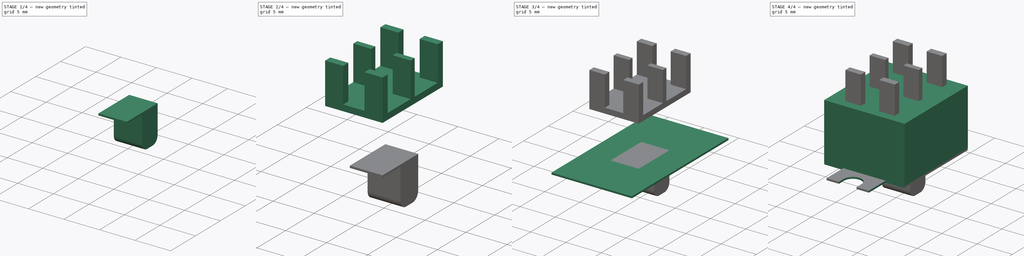
[diagram: build sequence overview — one tinted view per stage of 4, left to right]
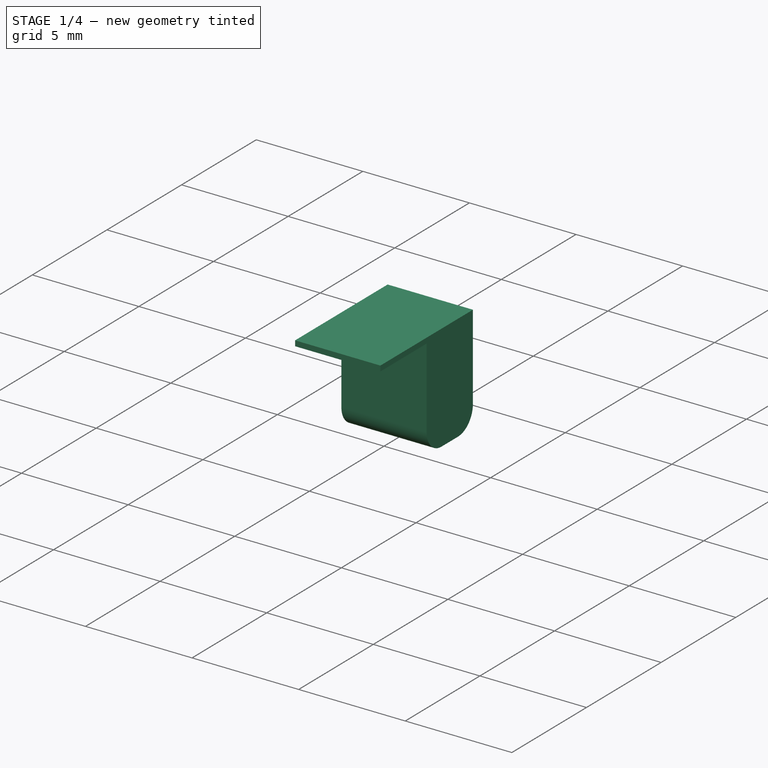
[diagram: stage 1 of 4 — iso view after this stage's code; geometry added in this stage tinted green]
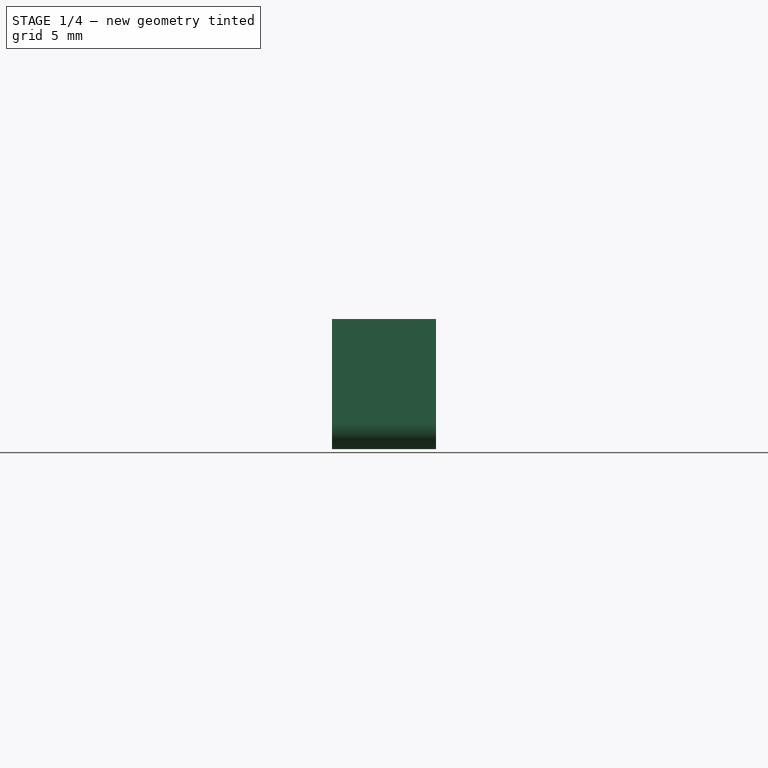
[diagram: stage 1 of 4 — front view after this stage's code; geometry added in this stage tinted green]
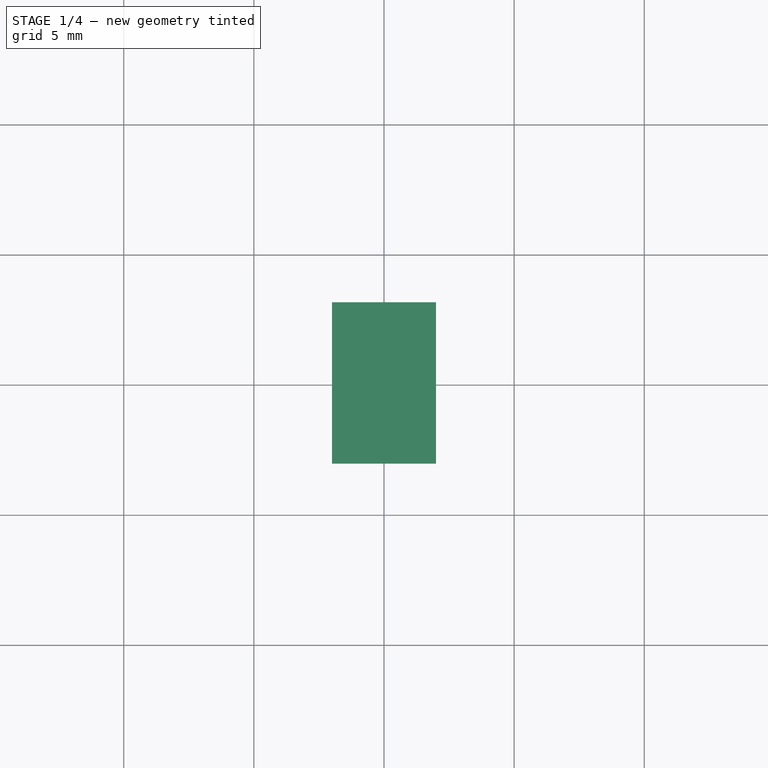
[diagram: stage 1 of 4 — top view after this stage's code; geometry added in this stage tinted green]
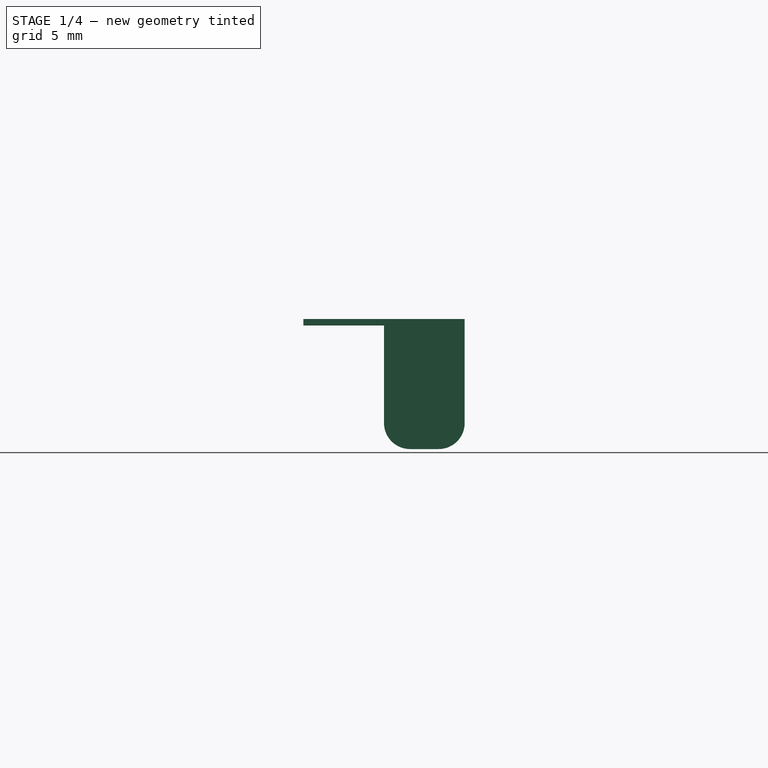
[diagram: stage 1 of 4 — right view after this stage's code; geometry added in this stage tinted green]
FCSTD DOCUMENT  (FreeCAD 0.19R24276 (Git))
Label: Std_DoubleSwitch
License: All rights reserved
LicenseURL: http://en.wikipedia.org/wiki/All_rights_reserved
objects: Sketcher::SketchObject×10, PartDesign::Pocket×6, PartDesign::Pad×4, PartDesign::Body×4, PartDesign::Plane×1, PartDesign::Fillet×1, App::Part×1
note: 37 computed .brp shape members not serialized (recipe doc carries the construction recipe); baked Part::Feature solids carry a one-line shape summary decoded from their .brp

FEATURE [PartDesign::Body] Body002  label="Connectors"
  Group = -> [DatumPlane,Sketch005,Pad002,Sketch007,Pocket003,Sketch008,Pocket004]
  Origin = -> Origin003
  Tip = -> Pocket004
FEATURE [Sketcher::SketchObject] Sketch009
  FullyConstrained = true
  MapMode = 5
  Support = -> [XY_Plane004]
  sketch-geometry (6):
    g0: LineSegment StartX=0 StartY=0 StartZ=0 EndX=0 EndY=3.1 EndZ=0
    g1: LineSegment StartX=0 StartY=0 StartZ=0 EndX=2 EndY=-1e-16 EndZ=0
    g2: LineSegment StartX=-2 StartY=3.1 StartZ=0 EndX=2 EndY=3.1 EndZ=0
    g3: LineSegment StartX=2 StartY=3.1 StartZ=0 EndX=2 EndY=-3.1 EndZ=0
    g4: LineSegment StartX=2 StartY=-3.1 StartZ=0 EndX=-2 EndY=-3.1 EndZ=0
    g5: LineSegment StartX=-2 StartY=-3.1 StartZ=0 EndX=-2 EndY=3.1 EndZ=0
  constraints (16):
    c: Coincident(g0,g-1)
    c: PointOnObject(g0,g-2)
    c: Coincident(g1,g-1)
    c: PointOnObject(g1,g-1)
    c: Coincident(g2,g3)
    c: Coincident(g3,g4)
    c: Coincident(g4,g5)
    c: Coincident(g5,g2)
    c: Horizontal(g2)
    c: Horizontal(g4)
    c: Vertical(g3)
    c: Vertical(g5)
    c: Symmetric(g2,g2,g0)
    c: Symmetric(g2,g3,g1)
    c: Distance(g2) = 4
    c: Distance(g3) = 6.2
FEATURE [PartDesign::Pad] Pad003
  Direction = (1,1,1)
  Length = 5
  Length2 = 100
  Profile = -> Sketch009
  Reversed = true
  Type = 0
FEATURE [Sketcher::SketchObject] Sketch011
  FullyConstrained = true
  MapMode = 5
  Placement = pos=(0,0,-5) rot=(1,0,0;3.14159rad)
  Support = -> [Pad003]
  sketch-geometry (4):
    g0: LineSegment StartX=-5 StartY=10 StartZ=0 EndX=5 EndY=10 EndZ=0
    g1: LineSegment StartX=5 StartY=10 StartZ=0 EndX=5 EndY=0 EndZ=0
    g2: LineSegment StartX=5 StartY=0 StartZ=0 EndX=-5 EndY=0 EndZ=0
    g3: LineSegment StartX=-5 StartY=0 StartZ=0 EndX=-5 EndY=10 EndZ=0
  constraints (11):
    c: Coincident(g0,g1)
    c: Coincident(g1,g2)
    c: Coincident(g2,g3)
    c: Coincident(g3,g0)
    c: Horizontal(g0)
    c: Horizontal(g2)
    c: Vertical(g1)
    c: Vertical(g3)
    c: Symmetric(g2,g1,g-1)
    c: Distance(g1) = 10
    c: Distance(g0) = 10
FEATURE [PartDesign::Pocket] Pocket005
  BaseFeature = -> Pad003
  Length = 4.75
  Length2 = 100
  Profile = -> Sketch011
  Type = 0
FEATURE [PartDesign::Fillet] Fillet
  Base = -> Pocket005 [Edge16,Edge4]
  BaseFeature = -> Pocket005
  Radius = 1
  SupportTransform = false
FEATURE [PartDesign::Body] Body003  label="Switch"
  Group = -> [Sketch009,Pad003,Sketch011,Pocket005,Fillet]
  Origin = -> Origin004
  Tip = -> Fillet
FEATURE [App::Part] Part  label="DoubleSwitch"
  Group = -> [Body,Body001,Body002,Body003]
  Origin = -> Origin
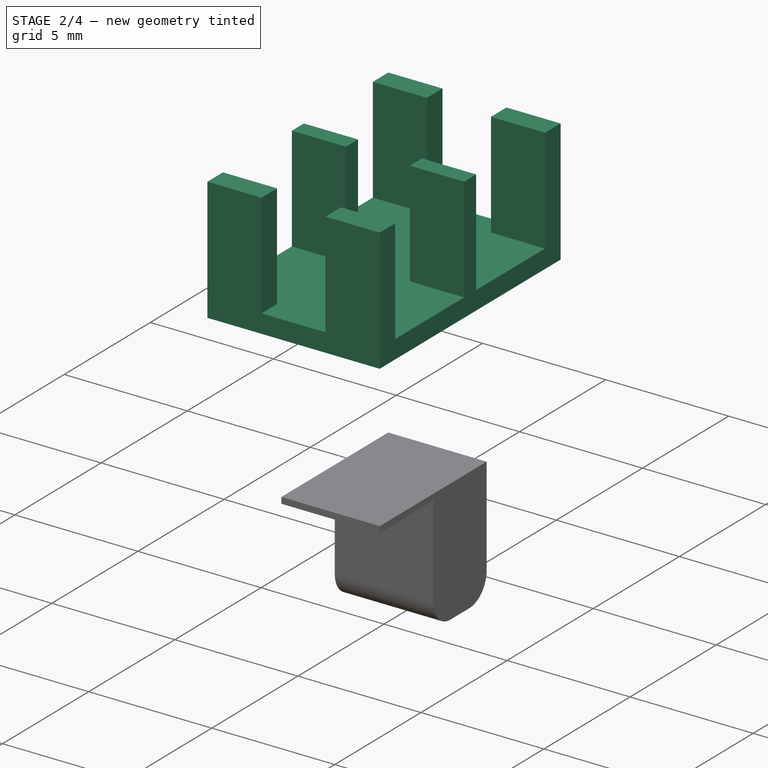
[diagram: stage 2 of 4 — iso view after this stage's code; geometry added in this stage tinted green]
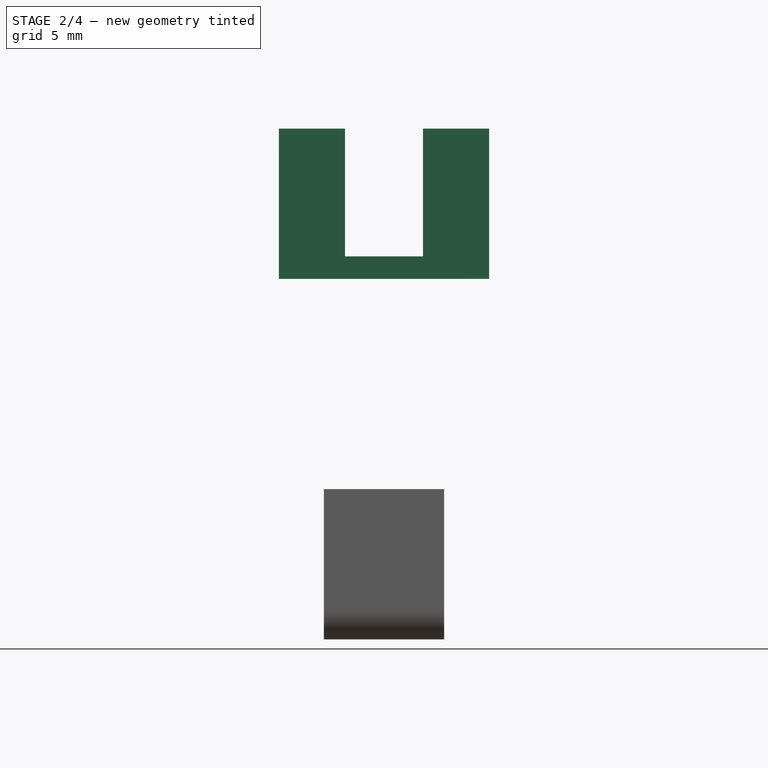
[diagram: stage 2 of 4 — front view after this stage's code; geometry added in this stage tinted green]
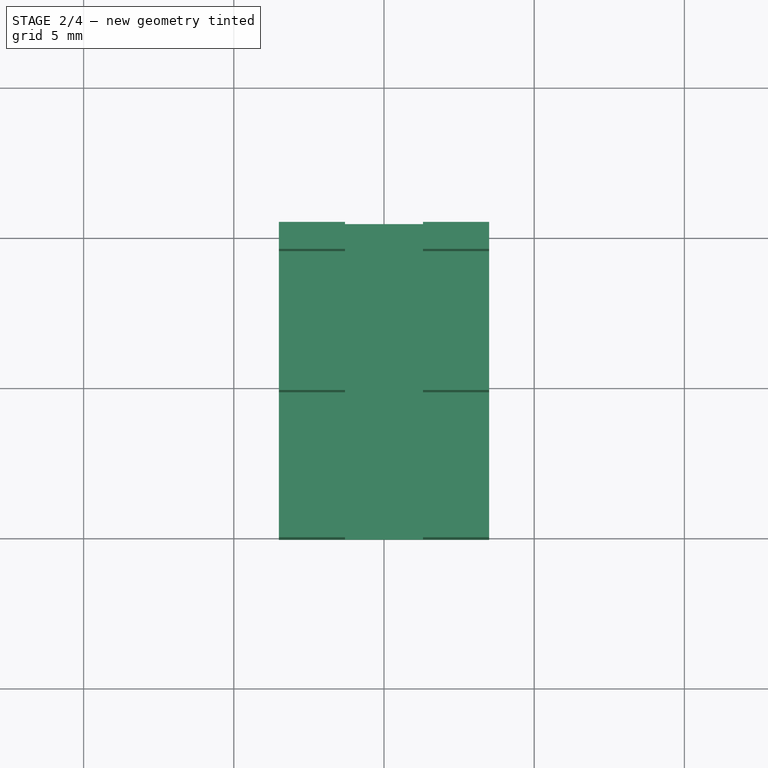
[diagram: stage 2 of 4 — top view after this stage's code; geometry added in this stage tinted green]
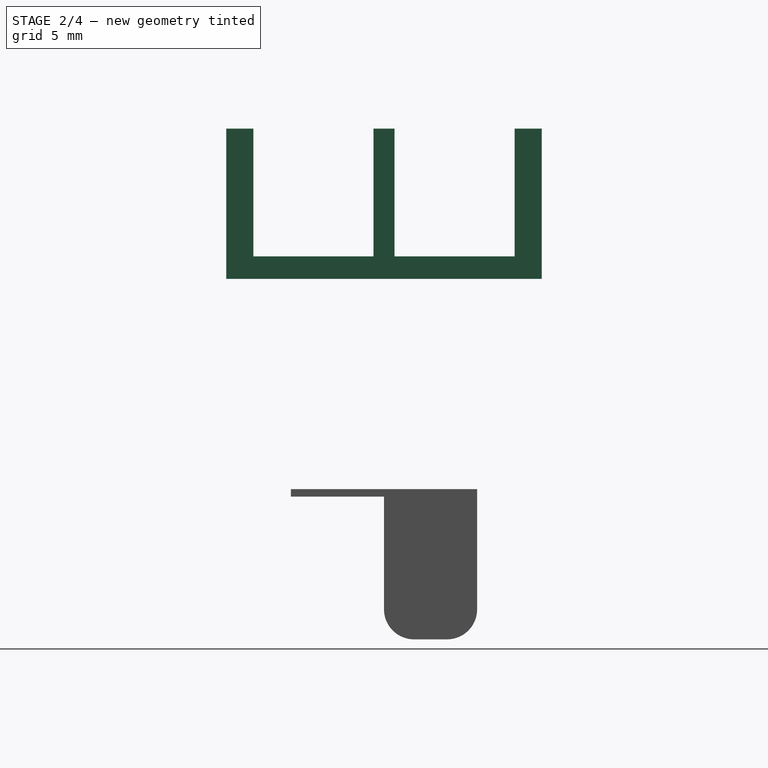
[diagram: stage 2 of 4 — right view after this stage's code; geometry added in this stage tinted green]
FEATURE [PartDesign::Body] Body001  label="FrontPlate"
  Group = -> [Sketch001,Pad001,Sketch002,Pocket,Sketch003,Pocket001,Sketch004,Pocket002]
  Origin = -> Origin002
  Tip = -> Pocket002
FEATURE [PartDesign::Plane] DatumPlane
  AttachmentOffset = pos=(0,0,7) rot=(0,0,1;0rad)
  Length = 60
  MapMode = 5
  Placement = pos=(0,0,7) rot=(0,0,1;0rad)
  ResizeMode = 0
  Support = -> [XY_Plane003]
  Width = 60
FEATURE [Sketcher::SketchObject] Sketch005
  FullyConstrained = true
  MapMode = 5
  Placement = pos=(0,0,7) rot=(0,0,1;0rad)
  Support = -> [DatumPlane]
  sketch-geometry (6):
    g0: LineSegment StartX=-3.5 StartY=5.25 StartZ=0 EndX=3.5 EndY=5.25 EndZ=0
    g1: LineSegment StartX=3.5 StartY=5.25 StartZ=0 EndX=3.5 EndY=-5.25 EndZ=0
    g2: LineSegment StartX=3.5 StartY=-5.25 StartZ=0 EndX=-3.5 EndY=-5.25 EndZ=0
    g3: LineSegment StartX=-3.5 StartY=-5.25 StartZ=0 EndX=-3.5 EndY=5.25 EndZ=0
    g4: LineSegment StartX=0 StartY=0 StartZ=0 EndX=0 EndY=5.25 EndZ=0
    g5: LineSegment StartX=0 StartY=0 StartZ=0 EndX=3.5 EndY=-1e-16 EndZ=0
  constraints (16):
    c: Coincident(g0,g1)
    c: Coincident(g1,g2)
    c: Coincident(g2,g3)
    c: Coincident(g3,g0)
    c: Horizontal(g0)
    c: Horizontal(g2)
    c: Vertical(g1)
    c: Vertical(g3)
    c: Coincident(g4,g-1)
    c: PointOnObject(g4,g-2)
    c: Coincident(g5,g-1)
    c: PointOnObject(g5,g-1)
    c: Symmetric(g0,g0,g4)
    c: Symmetric(g1,g0,g5)
    c: Distance(g0) = 7
    c: Distance(g1) = 10.5
FEATURE [PartDesign::Pad] Pad002
  Direction = (1,1,1)
  Length = 5
  Length2 = 100
  Placement = pos=(0,0,7) rot=(0,0,1;0rad)
  Profile = -> Sketch005
  Type = 0
FEATURE [Sketcher::SketchObject] Sketch007
  FullyConstrained = true
  MapMode = 5
  Placement = pos=(0,0,12) rot=(0,0,1;0rad)
  Support = -> [Pad002]
  sketch-geometry (10):
    g0: LineSegment StartX=0 StartY=0 StartZ=0 EndX=0 EndY=0.35 EndZ=0
    g1: LineSegment StartX=0 StartY=0 StartZ=0 EndX=0 EndY=-0.35 EndZ=0
    g2: LineSegment StartX=-6 StartY=4.35 StartZ=0 EndX=6 EndY=4.35 EndZ=0
    g3: LineSegment StartX=6 StartY=4.35 StartZ=0 EndX=6 EndY=0.35 EndZ=0
    g4: LineSegment StartX=6 StartY=0.35 StartZ=0 EndX=-6 EndY=0.35 EndZ=0
    g5: LineSegment StartX=-6 StartY=0.35 StartZ=0 EndX=-6 EndY=4.35 EndZ=0
    g6: LineSegment StartX=-6 StartY=-0.35 StartZ=0 EndX=6 EndY=-0.35 EndZ=0
    g7: LineSegment StartX=6 StartY=-0.35 StartZ=0 EndX=6 EndY=-4.35 EndZ=0
    g8: LineSegment StartX=6 StartY=-4.35 StartZ=0 EndX=-6 EndY=-4.35 EndZ=0
    g9: LineSegment StartX=-6 StartY=-4.35 StartZ=0 EndX=-6 EndY=-0.35 EndZ=0
  constraints (28):
    c: Coincident(g0,g-1)
    c: PointOnObject(g0,g-2)
    c: Coincident(g1,g-1)
    c: PointOnObject(g1,g-2)
    c: Equal(g0,g1)
    c: Coincident(g2,g3)
    c: Coincident(g3,g4)
    c: Coincident(g4,g5)
    c: Coincident(g5,g2)
    c: Horizontal(g2)
    c: Horizontal(g4)
    c: Vertical(g3)
    c: Vertical(g5)
    c: Coincident(g6,g7)
    c: Coincident(g7,g8)
    c: Coincident(g8,g9)
    c: Coincident(g9,g6)
    c: Horizontal(g6)
    c: Horizontal(g8)
    c: Vertical(g7)
    c: Vertical(g9)
    c: Symmetric(g4,g3,g0)
    c: Symmetric(g6,g6,g1)
    c: Distance(g3) = 4
    c: Distance(g7) = 4
    c: DistanceY(g6,g3) = 0.7
    c: Equal(g2,g8)
    c: Distance(g2) = 12
FEATURE [PartDesign::Pocket] Pocket003
  BaseFeature = -> Pad002
  Length = 8.5
  Length2 = 100
  Midplane = true
  Placement = pos=(0,0,7) rot=(0,0,1;0rad)
  Profile = -> Sketch007
  Type = 0
FEATURE [Sketcher::SketchObject] Sketch008
  FullyConstrained = true
  MapMode = 5
  Placement = pos=(0,0,12) rot=(0,0,1;0rad)
  Support = -> [Pocket003]
  sketch-geometry (6):
    g0: LineSegment StartX=0 StartY=0 StartZ=0 EndX=0 EndY=10 EndZ=0
    g1: LineSegment StartX=0 StartY=0 StartZ=0 EndX=1.3 EndY=-3e-16 EndZ=0
    g2: LineSegment StartX=-1.3 StartY=10 StartZ=0 EndX=1.3 EndY=10 EndZ=0
    g3: LineSegment StartX=1.3 StartY=10 StartZ=0 EndX=1.3 EndY=-10 EndZ=0
    g4: LineSegment StartX=1.3 StartY=-10 StartZ=0 EndX=-1.3 EndY=-10 EndZ=0
    g5: LineSegment StartX=-1.3 StartY=-10 StartZ=0 EndX=-1.3 EndY=10 EndZ=0
  constraints (16):
    c: Coincident(g0,g-1)
    c: PointOnObject(g0,g-2)
    c: Coincident(g1,g-1)
    c: PointOnObject(g1,g-1)
    c: Coincident(g2,g3)
    c: Coincident(g3,g4)
    c: Coincident(g4,g5)
    c: Coincident(g5,g2)
    c: Horizontal(g2)
    c: Horizontal(g4)
    c: Vertical(g3)
    c: Vertical(g5)
    c: Symmetric(g2,g2,g0)
    c: Symmetric(g2,g3,g1)
    c: Distance(g2) = 2.6
    c: Distance(g3) = 20
FEATURE [PartDesign::Pocket] Pocket004
  BaseFeature = -> Pocket003
  Length = 8.5
  Length2 = 100
  Midplane = true
  Placement = pos=(0,0,7) rot=(0,0,1;0rad)
  Profile = -> Sketch008
  Type = 0
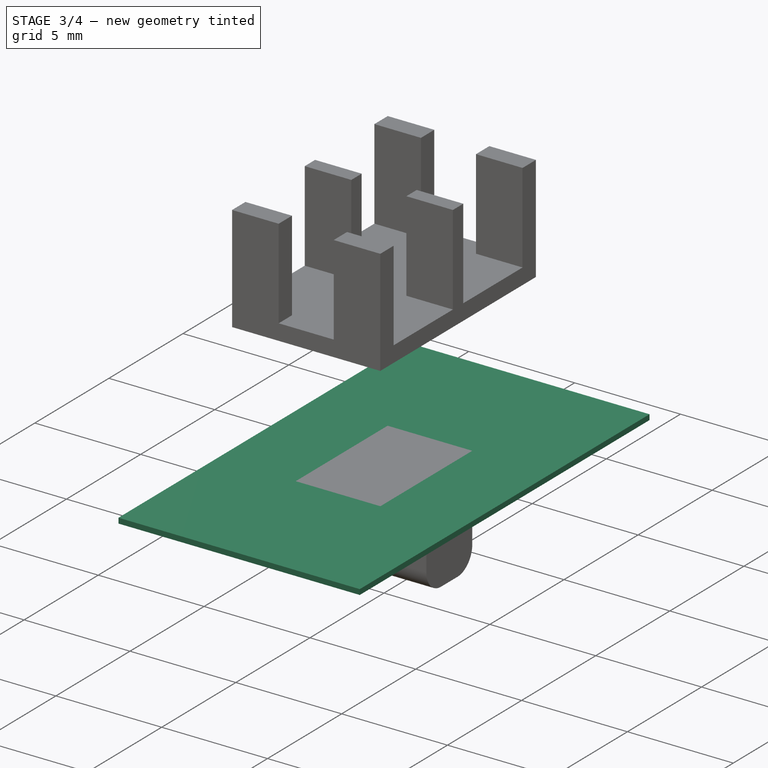
[diagram: stage 3 of 4 — iso view after this stage's code; geometry added in this stage tinted green]
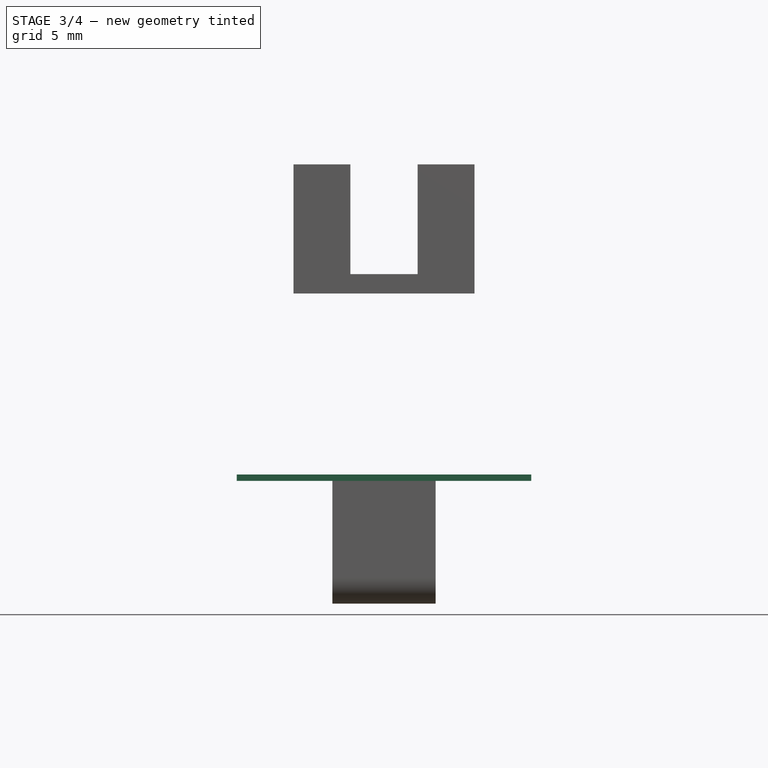
[diagram: stage 3 of 4 — front view after this stage's code; geometry added in this stage tinted green]
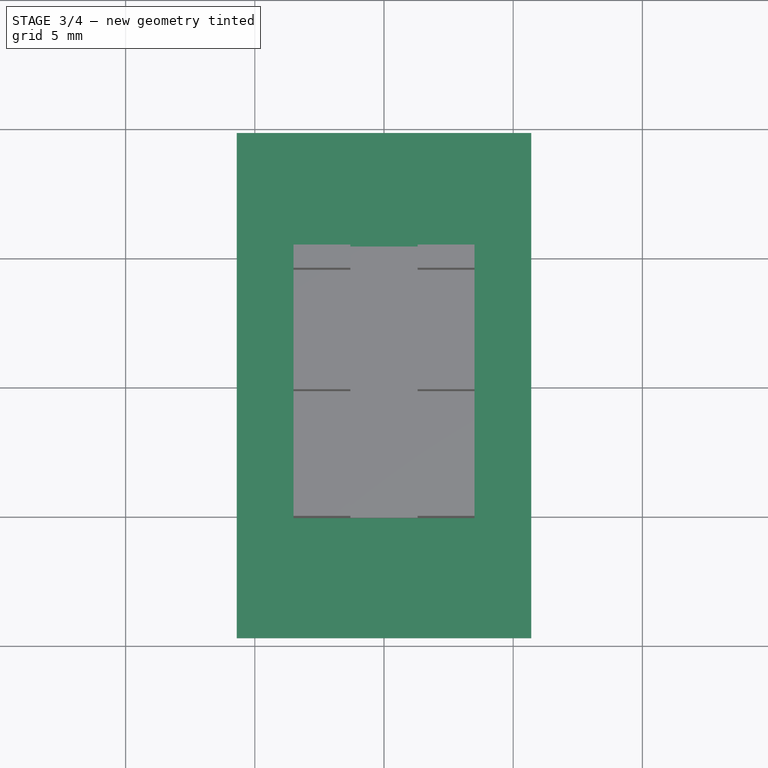
[diagram: stage 3 of 4 — top view after this stage's code; geometry added in this stage tinted green]
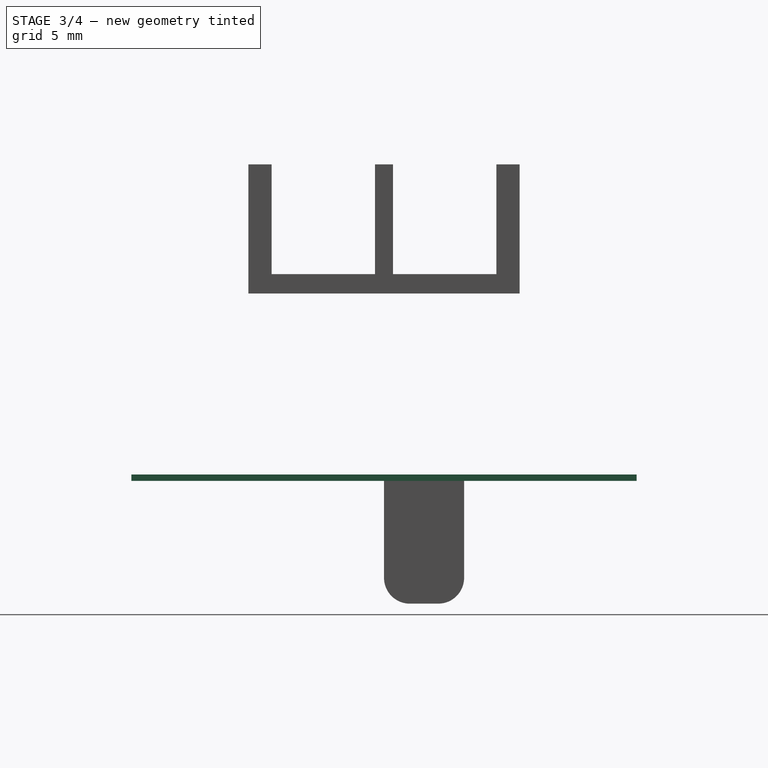
[diagram: stage 3 of 4 — right view after this stage's code; geometry added in this stage tinted green]
FEATURE [PartDesign::Body] Body  label="MainBody"
  Group = -> [Sketch,Pad]
  Origin = -> Origin001
  Tip = -> Pad
FEATURE [Sketcher::SketchObject] Sketch001
  FullyConstrained = true
  MapMode = 5
  Support = -> [XY_Plane002]
  sketch-geometry (6):
    g0: LineSegment StartX=0 StartY=0 StartZ=0 EndX=0 EndY=9.775 EndZ=0
    g1: LineSegment StartX=0 StartY=0 StartZ=0 EndX=5.7 EndY=2e-16 EndZ=0
    g2: LineSegment StartX=-5.7 StartY=9.775 StartZ=0 EndX=5.7 EndY=9.775 EndZ=0
    g3: LineSegment StartX=5.7 StartY=9.775 StartZ=0 EndX=5.7 EndY=-9.775 EndZ=0
    g4: LineSegment StartX=5.7 StartY=-9.775 StartZ=0 EndX=-5.7 EndY=-9.775 EndZ=0
    g5: LineSegment StartX=-5.7 StartY=-9.775 StartZ=0 EndX=-5.7 EndY=9.775 EndZ=0
  constraints (16):
    c: Coincident(g0,g-1)
    c: PointOnObject(g0,g-2)
    c: Coincident(g1,g-1)
    c: PointOnObject(g1,g-1)
    c: Coincident(g2,g3)
    c: Coincident(g3,g4)
    c: Coincident(g4,g5)
    c: Coincident(g5,g2)
    c: Horizontal(g2)
    c: Horizontal(g4)
    c: Vertical(g3)
    c: Vertical(g5)
    c: Symmetric(g2,g2,g0)
    c: Symmetric(g2,g3,g1)
    c: Distance(g2) = 11.4
    c: Distance(g3) = 19.55
FEATURE [PartDesign::Pad] Pad001
  Direction = (1,1,1)
  Length = 0.25
  Length2 = 100
  Profile = -> Sketch001
  Reversed = true
  Type = 0
FEATURE [Sketcher::SketchObject] Sketch002
  FullyConstrained = true
  MapMode = 5
  Support = -> [XY_Plane002]
  sketch-geometry (6):
    g0: LineSegment StartX=-2 StartY=3.1 StartZ=0 EndX=2 EndY=3.1 EndZ=0
    g1: LineSegment StartX=2 StartY=3.1 StartZ=0 EndX=2 EndY=-3.1 EndZ=0
    g2: LineSegment StartX=2 StartY=-3.1 StartZ=0 EndX=-2 EndY=-3.1 EndZ=0
    g3: LineSegment StartX=-2 StartY=-3.1 StartZ=0 EndX=-2 EndY=3.1 EndZ=0
    g4: LineSegment StartX=0 StartY=0 StartZ=0 EndX=0 EndY=3.1 EndZ=0
    g5: LineSegment StartX=0 StartY=0 StartZ=0 EndX=2 EndY=0 EndZ=0
  constraints (16):
    c: Coincident(g0,g1)
    c: Coincident(g1,g2)
    c: Coincident(g2,g3)
    c: Coincident(g3,g0)
    c: Horizontal(g0)
    c: Horizontal(g2)
    c: Vertical(g1)
    c: Vertical(g3)
    c: Coincident(g4,g-1)
    c: PointOnObject(g4,g-2)
    c: Coincident(g5,g-1)
    c: PointOnObject(g5,g-1)
    c: Symmetric(g0,g0,g4)
    c: Symmetric(g0,g1,g5)
    c: Distance(g1) = 6.2
    c: Distance(g0) = 4
FEATURE [PartDesign::Pocket] Pocket
  BaseFeature = -> Pad001
  Length = 5
  Length2 = 100
  Profile = -> Sketch002
  Type = 0
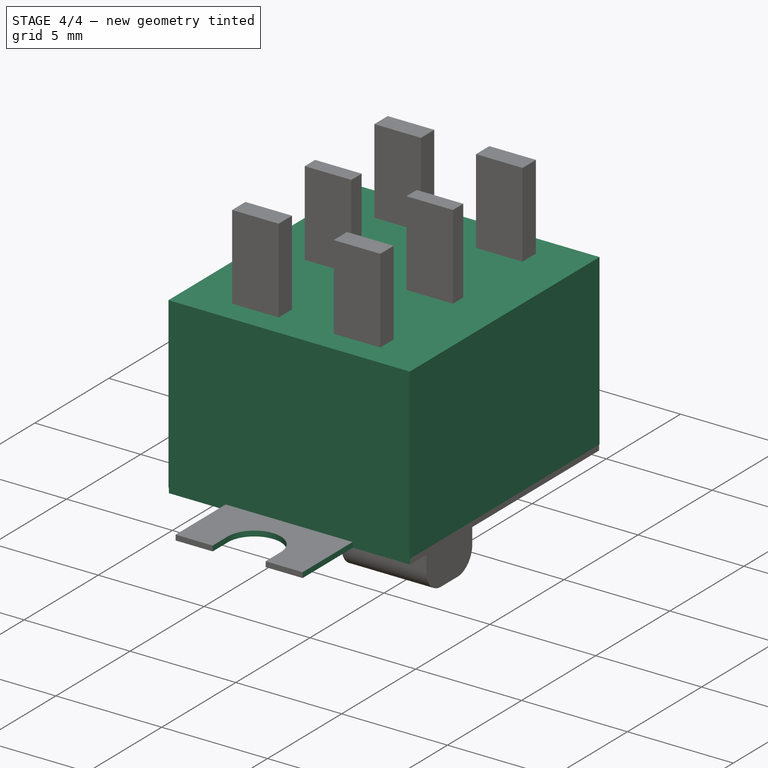
[diagram: stage 4 of 4 — iso view after this stage's code; geometry added in this stage tinted green]
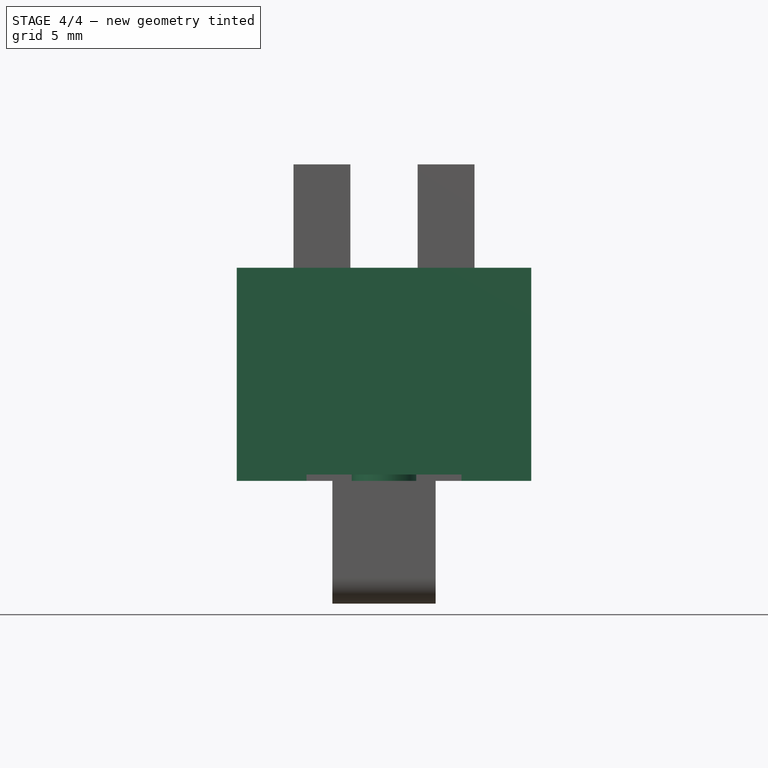
[diagram: stage 4 of 4 — front view after this stage's code; geometry added in this stage tinted green]
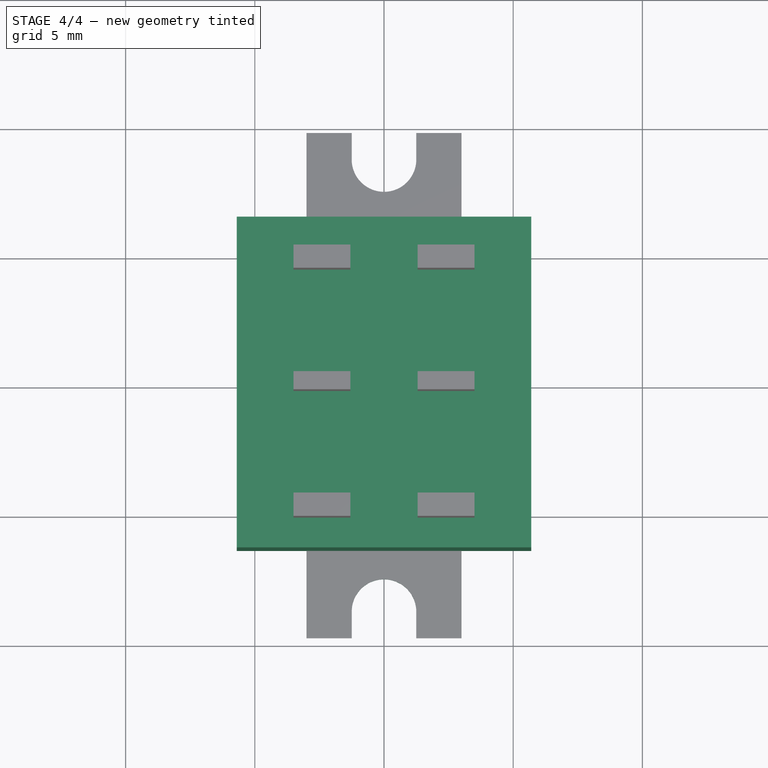
[diagram: stage 4 of 4 — top view after this stage's code; geometry added in this stage tinted green]
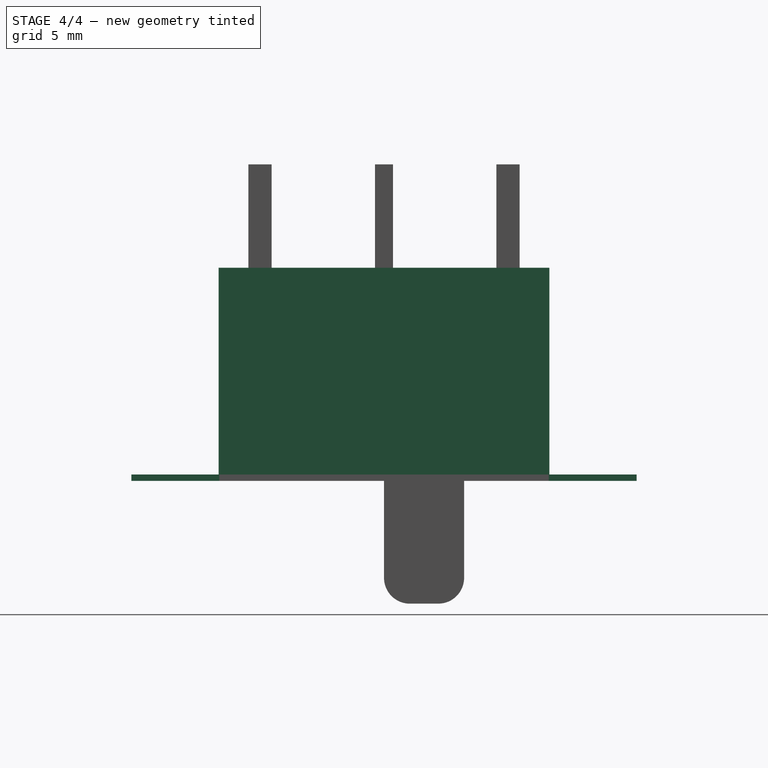
[diagram: stage 4 of 4 — right view after this stage's code; geometry added in this stage tinted green]
FEATURE [Sketcher::SketchObject] Sketch
  FullyConstrained = true
  MapMode = 5
  Support = -> [XY_Plane]
  sketch-geometry (6):
    g0: LineSegment StartX=0 StartY=0 StartZ=0 EndX=-1e-16 EndY=6.4 EndZ=0
    g1: LineSegment StartX=0 StartY=0 StartZ=0 EndX=5.7 EndY=0 EndZ=0
    g2: LineSegment StartX=-5.7 StartY=6.4 StartZ=0 EndX=5.7 EndY=6.4 EndZ=0
    g3: LineSegment StartX=5.7 StartY=6.4 StartZ=0 EndX=5.7 EndY=-6.4 EndZ=0
    g4: LineSegment StartX=5.7 StartY=-6.4 StartZ=0 EndX=-5.7 EndY=-6.4 EndZ=0
    g5: LineSegment StartX=-5.7 StartY=-6.4 StartZ=0 EndX=-5.7 EndY=6.4 EndZ=0
  constraints (16):
    c: Coincident(g0,g-1)
    c: PointOnObject(g0,g-2)
    c: Coincident(g1,g-1)
    c: PointOnObject(g1,g-1)
    c: Coincident(g2,g3)
    c: Coincident(g3,g4)
    c: Coincident(g4,g5)
    c: Coincident(g5,g2)
    c: Horizontal(g2)
    c: Horizontal(g4)
    c: Vertical(g3)
    c: Vertical(g5)
    c: Symmetric(g2,g2,g0)
    c: Symmetric(g3,g2,g1)
    c: Distance(g3) = 12.8
    c: Distance(g2) = 11.4
FEATURE [PartDesign::Pad] Pad
  Direction = (1,1,1)
  Length = 8
  Length2 = 100
  Profile = -> Sketch
  Type = 0
FEATURE [Sketcher::SketchObject] Sketch003
  FullyConstrained = true
  MapMode = 5
  Support = -> [XY_Plane002]
  sketch-geometry (22):
    g0: LineSegment StartX=0 StartY=0 StartZ=0 EndX=0 EndY=-6.375 EndZ=0
    g1: LineSegment StartX=0 StartY=0 StartZ=0 EndX=0 EndY=6.375 EndZ=0
    g2: LineSegment StartX=-13 StartY=-6.375 StartZ=0 EndX=-3 EndY=-6.375 EndZ=0
    g3: LineSegment StartX=-3 StartY=-6.375 StartZ=0 EndX=-3 EndY=-16.375 EndZ=0
    g4: LineSegment StartX=-3 StartY=-16.375 StartZ=0 EndX=-13 EndY=-16.375 EndZ=0
    g5: LineSegment StartX=-13 StartY=-16.375 StartZ=0 EndX=-13 EndY=-6.375 EndZ=0
    g6: LineSegment StartX=3 StartY=-6.375 StartZ=0 EndX=13 EndY=-6.375 EndZ=0
    g7: LineSegment StartX=13 StartY=-6.375 StartZ=0 EndX=13 EndY=-16.375 EndZ=0
    g8: LineSegment StartX=13 StartY=-16.375 StartZ=0 EndX=3 EndY=-16.375 EndZ=0
    g9: LineSegment StartX=3 StartY=-16.375 StartZ=0 EndX=3 EndY=-6.375 EndZ=0
    g10: LineSegment StartX=3 StartY=16.375 StartZ=0 EndX=13 EndY=16.375 EndZ=0
    g11: LineSegment StartX=13 StartY=16.375 StartZ=0 EndX=13 EndY=6.375 EndZ=0
    g12: LineSegment StartX=13 StartY=6.375 StartZ=0 EndX=3 EndY=6.375 EndZ=0
    g13: LineSegment StartX=3 StartY=6.375 StartZ=0 EndX=3 EndY=16.375 EndZ=0
    g14: LineSegment StartX=-13 StartY=16.375 StartZ=0 EndX=-3 EndY=16.375 EndZ=0
    g15: LineSegment StartX=-3 StartY=16.375 StartZ=0 EndX=-3 EndY=6.375 EndZ=0
    g16: LineSegment StartX=-3 StartY=6.375 StartZ=0 EndX=-13 EndY=6.375 EndZ=0
    g17: LineSegment StartX=-13 StartY=6.375 StartZ=0 EndX=-13 EndY=16.375 EndZ=0
    g18: LineSegment StartX=-3 StartY=6.375 StartZ=0 EndX=3 EndY=6.375 EndZ=0
    g19: LineSegment StartX=-3 StartY=16.375 StartZ=0 EndX=3 EndY=16.375 EndZ=0
    g20: LineSegment StartX=-3 StartY=-6.375 StartZ=0 EndX=3 EndY=-6.375 EndZ=0
    g21: LineSegment StartX=-3 StartY=-16.375 StartZ=0 EndX=3 EndY=-16.375 EndZ=0
  constraints (60):
    c: Coincident(g0,g-1)
    c: PointOnObject(g0,g-2)
    c: Coincident(g1,g-1)
    c: PointOnObject(g1,g-2)
    c: Equal(g1,g0)
    c: Coincident(g2,g3)
    c: Coincident(g3,g4)
    c: Coincident(g4,g5)
    c: Coincident(g5,g2)
    c: Horizontal(g2)
    c: Horizontal(g4)
    c: Vertical(g3)
    c: Vertical(g5)
    c: Coincident(g6,g7)
    c: Coincident(g7,g8)
    c: Coincident(g8,g9)
    c: Coincident(g9,g6)
    c: Horizontal(g6)
    c: Horizontal(g8)
    c: Vertical(g7)
    c: Vertical(g9)
    c: Coincident(g10,g11)
    c: Coincident(g11,g12)
    c: Coincident(g12,g13)
    c: Coincident(g13,g10)
    c: Horizontal(g10)
    c: Horizontal(g12)
    c: Vertical(g11)
    c: Vertical(g13)
    c: Coincident(g14,g15)
    c: Coincident(g15,g16)
    c: Coincident(g16,g17)
    c: Coincident(g17,g14)
    c: Horizontal(g14)
    c: Horizontal(g16)
    c: Vertical(g15)
    c: Vertical(g17)
    c: Coincident(g18,g15)
    c: Coincident(g18,g12)
    c: Horizontal(g18)
    c: Coincident(g19,g14)
    c: Coincident(g19,g10)
    c: Horizontal(g19)
    c: Coincident(g20,g2)
    c: Coincident(g20,g6)
    c: Horizontal(g20)
    c: Coincident(g21,g3)
    c: Coincident(g21,g8)
    c: Horizontal(g21)
    c: Equal(g14,g10)
    c: Equal(g4,g8)
    c: Distance(g14) = 10
    c: Distance(g17) = 10
    c: Equal(g17,g5)
    c: Equal(g14,g4)
    c: Equal(g18,g20)
    c: Symmetric(g15,g12,g1)
    c: Symmetric(g2,g6,g0)
    c: DistanceY(g6,g11) = 12.75
    c: Distance(g19) = 6
FEATURE [PartDesign::Pocket] Pocket001
  BaseFeature = -> Pocket
  Length = 5
  Length2 = 100
  Profile = -> Sketch003
  Type = 0
FEATURE [Sketcher::SketchObject] Sketch004
  FullyConstrained = true
  MapMode = 5
  Support = -> [XY_Plane002]
  sketch-geometry (12):
    g0: LineSegment StartX=0 StartY=0 StartZ=0 EndX=0 EndY=8.75 EndZ=0
    g1: LineSegment StartX=0 StartY=0 StartZ=0 EndX=0 EndY=-8.75 EndZ=0
    g2: ArcOfCircle CenterX=0 CenterY=8.75 CenterZ=0 NormalX=0 NormalY=0 NormalZ=1 AngleXU=0 Radius=1.25 StartAngle=3.14159 EndAngle=6.28319
    g3: ArcOfCircle CenterX=0 CenterY=-8.75 CenterZ=0 NormalX=0 NormalY=0 NormalZ=1 AngleXU=0 Radius=1.25 StartAngle=-6.57e-14 EndAngle=3.14159
    g4: LineSegment StartX=-1.25 StartY=-8.75 StartZ=0 EndX=-1.25 EndY=-18.75 EndZ=0
    g5: LineSegment StartX=-1.25 StartY=-18.75 StartZ=0 EndX=1.25 EndY=-18.75 EndZ=0
    g6: LineSegment StartX=1.25 StartY=-18.75 StartZ=0 EndX=1.25 EndY=-8.75 EndZ=0
    g7: LineSegment StartX=-1.25 StartY=8.75 StartZ=0 EndX=-1.25 EndY=18.75 EndZ=0
    g8: LineSegment StartX=-1.25 StartY=18.75 StartZ=0 EndX=1.25 EndY=18.75 EndZ=0
    g9: LineSegment StartX=1.25 StartY=18.75 StartZ=0 EndX=1.25 EndY=8.75 EndZ=0
    g10: LineSegment StartX=-1.25 StartY=8.75 StartZ=0 EndX=1.25 EndY=8.75 EndZ=0
    g11: LineSegment StartX=-1.25 StartY=-8.75 StartZ=0 EndX=1.25 EndY=-8.75 EndZ=0
  constraints (34):
    c: Coincident(g0,g-1)
    c: PointOnObject(g0,g-2)
    c: Coincident(g1,g-1)
    c: PointOnObject(g1,g-2)
    c: Equal(g0,g1)
    c: Coincident(g4,g3)
    c: Vertical(g4)
    c: Coincident(g5,g4)
    c: Horizontal(g5)
    c: Coincident(g6,g5)
    c: Coincident(g6,g3)
    c: Vertical(g6)
    c: Coincident(g7,g2)
    c: Vertical(g7)
    c: Coincident(g8,g7)
    c: Coincident(g9,g8)
    c: Coincident(g9,g2)
    c: Vertical(g9)
    c: Horizontal(g8)
    c: Coincident(g10,g2)
    c: Coincident(g10,g2)
    c: Coincident(g11,g3)
    c: Coincident(g11,g3)
    c: Horizontal(g11)
    c: Horizontal(g10)
    c: PointOnObject(g2,g10)
    c: PointOnObject(g3,g11)
    c: Equal(g8,g5)
    c: Equal(g7,g4)
    c: Coincident(g2,g0)
    c: Coincident(g3,g1)
    c: Distance(g5) = 2.5
    c: DistanceY(g3,g2) = 17.5
    c: Distance(g9) = 10
FEATURE [PartDesign::Pocket] Pocket002
  BaseFeature = -> Pocket001
  Length = 5
  Length2 = 100
  Profile = -> Sketch004
  Type = 1
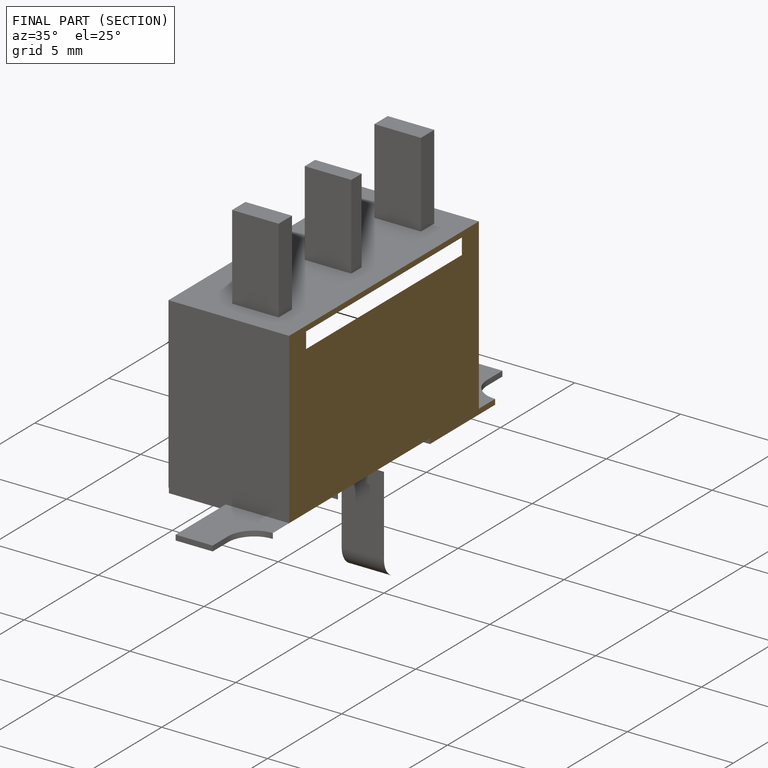
[diagram: finished part — half-section view (interior)]
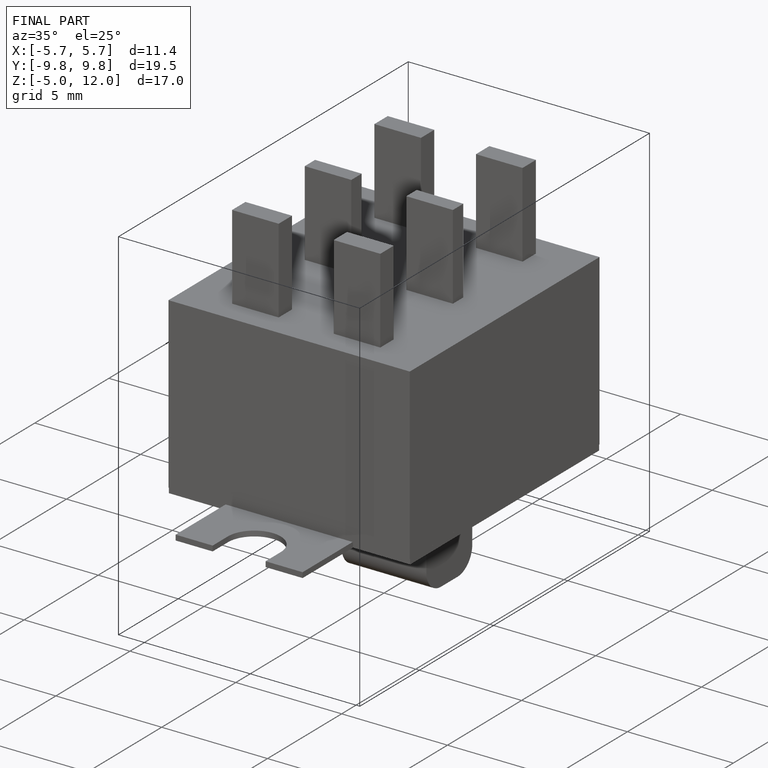
[diagram: finished part — iso view with bounding-box wireframe]
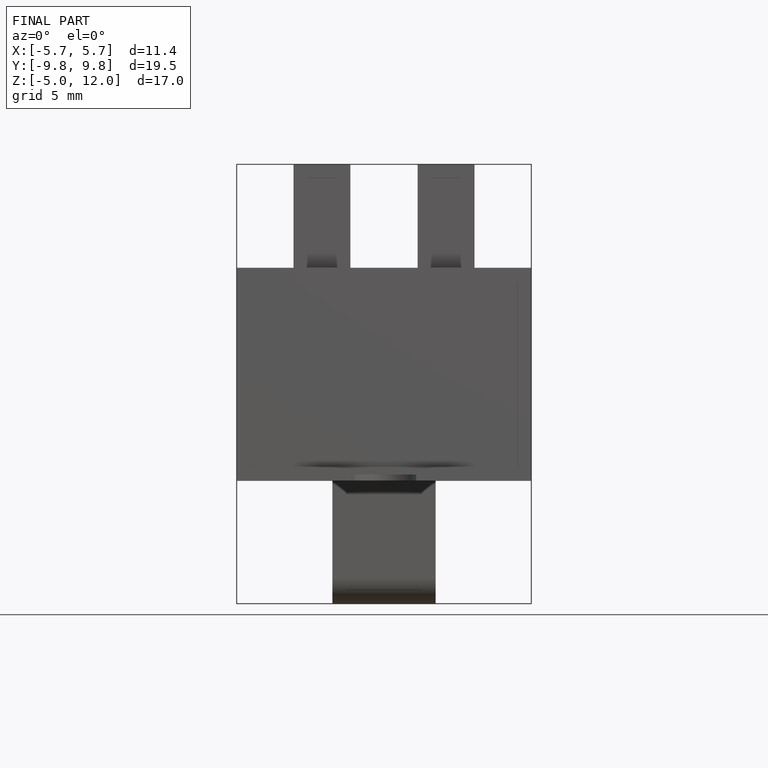
[diagram: finished part — front view with bounding-box wireframe]
